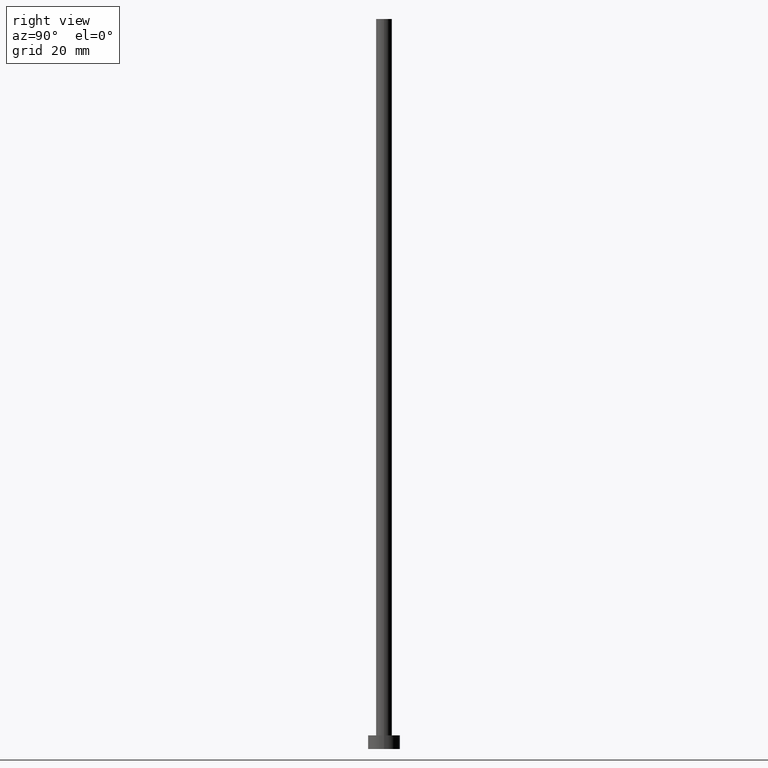
[diagram: clean part render]
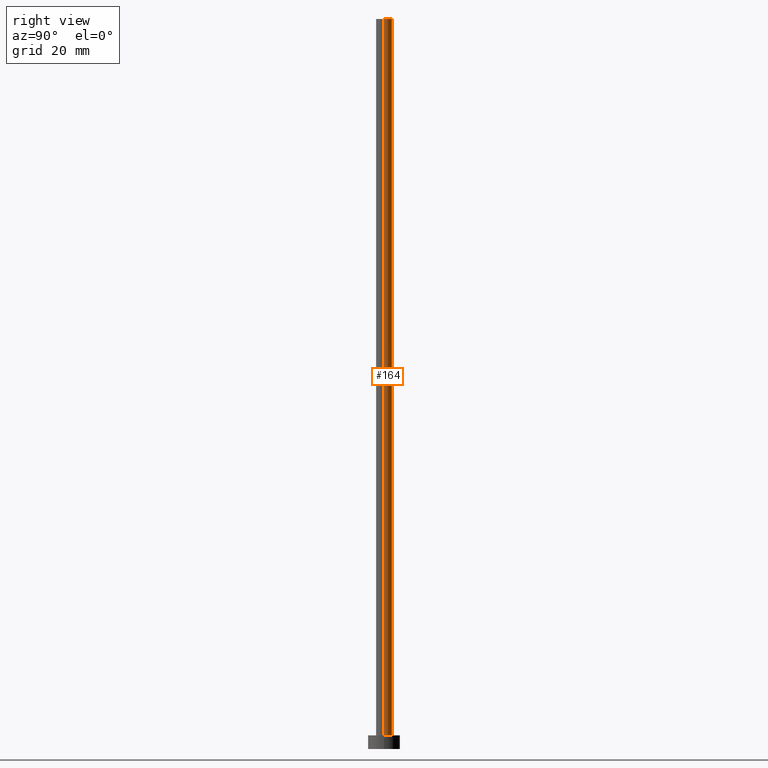
[diagram: same view with one face highlighted and labeled with its STEP entity id]
A machine part, right view. The second image highlights one B-rep face of the part: STEP entity #164.
In plain terms, the highlighted cylindrical surface (edge-blend (fillet) strip) has radius 1.75 mm, axis along (-0, -0, -1).
Its self-contained STEP definition (entity closure, byte-faithful):
#6 = DIRECTION ( 'NONE',  ( -0.000000000000000000, -0.000000000000000000, -1.000000000000000000 ) ) ;
#7 = CARTESIAN_POINT ( 'NONE',  ( 0.000000000000000000, 0.000000000000000000, 160.0000000000000000 ) ) ;
#9 = LINE ( 'NONE', #78, #168 ) ;
#11 = LINE ( 'NONE', #80, #85 ) ;
#19 = ORIENTED_EDGE ( 'NONE', *, *, #153, .F. ) ;
#25 = AXIS2_PLACEMENT_3D ( 'NONE', #7, #139, #45 ) ;
#26 = CARTESIAN_POINT ( 'NONE',  ( 1.750000000000000000, 2.143131898507868297E-16, 160.0000000000000000 ) ) ;
#44 = EDGE_CURVE ( 'NONE', #150, #112, #58, .T. ) ;
#45 = DIRECTION ( 'NONE',  ( 1.000000000000000000, 0.000000000000000000, 0.000000000000000000 ) ) ;
#46 = CARTESIAN_POINT ( 'NONE',  ( -1.750000000000000000, 0.000000000000000000, 160.0000000000000000 ) ) ;
#58 = CIRCLE ( 'NONE', #230, 1.750000000000000000 ) ;
#59 = CARTESIAN_POINT ( 'NONE',  ( 0.000000000000000000, 0.000000000000000000, 3.000000000000000000 ) ) ;
#61 = CARTESIAN_POINT ( 'NONE',  ( 1.750000000000000000, 2.143131898507868297E-16, 3.000000000000000000 ) ) ;
#71 = VERTEX_POINT ( 'NONE', #46 ) ;
#74 = DIRECTION ( 'NONE',  ( -1.000000000000000000, 0.000000000000000000, 0.000000000000000000 ) ) ;
#78 = CARTESIAN_POINT ( 'NONE',  ( -1.750000000000000000, 0.000000000000000000, 160.0000000000000000 ) ) ;
#80 = CARTESIAN_POINT ( 'NONE',  ( 1.750000000000000000, 2.143131898507868297E-16, 160.0000000000000000 ) ) ;
#85 = VECTOR ( 'NONE', #161, 1000.000000000000000 ) ;
#94 = FACE_OUTER_BOUND ( 'NONE', #149, .T. ) ;
#112 = VERTEX_POINT ( 'NONE', #134 ) ;
#116 = CARTESIAN_POINT ( 'NONE',  ( 0.000000000000000000, 0.000000000000000000, 160.0000000000000000 ) ) ;
#129 = ORIENTED_EDGE ( 'NONE', *, *, #146, .F. ) ;
#130 = ORIENTED_EDGE ( 'NONE', *, *, #44, .T. ) ;
#134 = CARTESIAN_POINT ( 'NONE',  ( -1.750000000000000000, 0.000000000000000000, 3.000000000000000000 ) ) ;
#139 = DIRECTION ( 'NONE',  ( 0.000000000000000000, 0.000000000000000000, 1.000000000000000000 ) ) ;
#144 = CIRCLE ( 'NONE', #25, 1.750000000000000000 ) ;
#146 = EDGE_CURVE ( 'NONE', #71, #112, #9, .T. ) ;
#149 = EDGE_LOOP ( 'NONE', ( #19, #201, #130, #129 ) ) ;
#150 = VERTEX_POINT ( 'NONE', #61 ) ;
#152 = VERTEX_POINT ( 'NONE', #26 ) ;
#153 = EDGE_CURVE ( 'NONE', #152, #71, #144, .T. ) ;
#157 = CYLINDRICAL_SURFACE ( 'NONE', #174, 1.750000000000000000 ) ;
#159 = DIRECTION ( 'NONE',  ( -0.000000000000000000, -0.000000000000000000, -1.000000000000000000 ) ) ;
#161 = DIRECTION ( 'NONE',  ( -0.000000000000000000, -0.000000000000000000, -1.000000000000000000 ) ) ;
#164 = ADVANCED_FACE ( 'NONE', ( #94 ), #157, .T. ) ;
#168 = VECTOR ( 'NONE', #159, 1000.000000000000000 ) ;
#174 = AXIS2_PLACEMENT_3D ( 'NONE', #116, #6, #74 ) ;
#188 = EDGE_CURVE ( 'NONE', #152, #150, #11, .T. ) ;
#201 = ORIENTED_EDGE ( 'NONE', *, *, #188, .T. ) ;
#223 = DIRECTION ( 'NONE',  ( 1.000000000000000000, 0.000000000000000000, 0.000000000000000000 ) ) ;
#230 = AXIS2_PLACEMENT_3D ( 'NONE', #59, #241, #223 ) ;
#241 = DIRECTION ( 'NONE',  ( 0.000000000000000000, 0.000000000000000000, 1.000000000000000000 ) ) ;